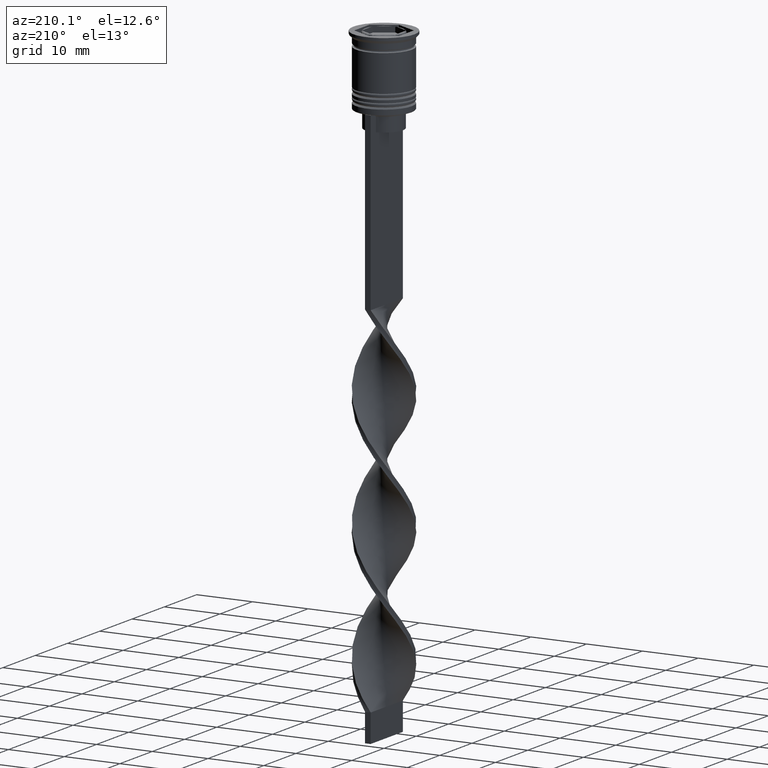
[diagram: clean part render]
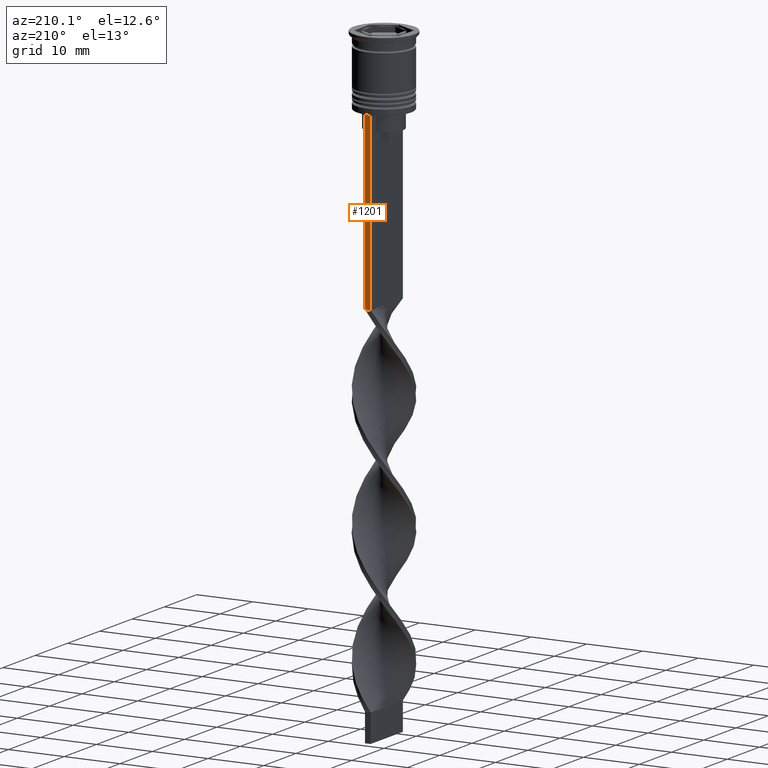
[diagram: same view with one face highlighted and labeled with its STEP entity id]
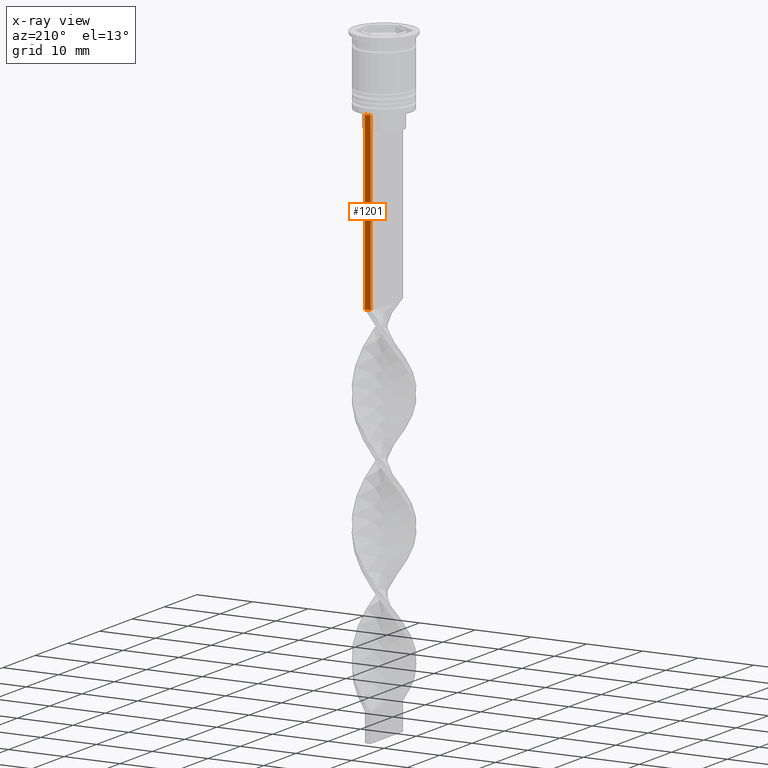
[diagram: x-ray of the same camera — body ghosted, the highlighted face saturated]
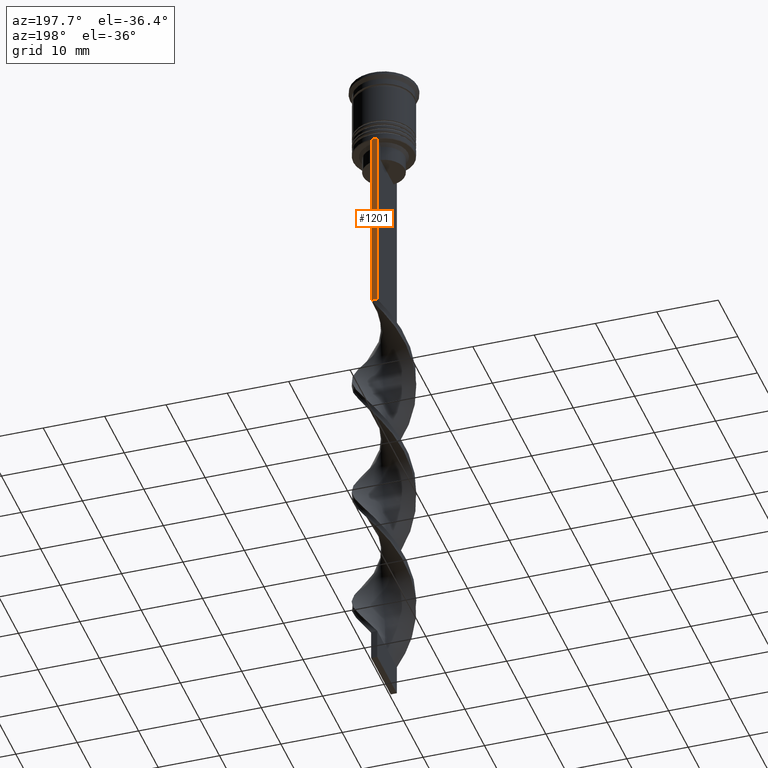
[diagram: same view with one face highlighted and labeled with its STEP entity id]
A machine part, auxiliary view. The second image highlights one B-rep face of the part: STEP entity #1201.
The next image is the same camera in x-ray: the body ghosted, the highlighted face saturated — about 0% of this face is hidden behind the body in this view.
A second angle (auxiliary view) of the same face is appended — the face is thin or edge-on in the first view.
In plain terms, the highlighted planar face has unit normal (0, -1, -0).
Its self-contained STEP definition (entity closure, byte-faithful):
#50 = DIRECTION ( 'NONE',  ( 0.000000000000000000, 0.000000000000000000, -1.000000000000000000 ) ) ;
#142 = CARTESIAN_POINT ( 'NONE',  ( 0.5000000000000000000, 5.000000000000000888, -2.450124378879110054 ) ) ;
#193 = EDGE_CURVE ( 'NONE', #2215, #1348, #1502, .T. ) ;
#252 = ORIENTED_EDGE ( 'NONE', *, *, #193, .T. ) ;
#381 = VERTEX_POINT ( 'NONE', #2992 ) ;
#382 = EDGE_CURVE ( 'NONE', #3464, #1348, #1564, .T. ) ;
#474 = VECTOR ( 'NONE', #1388, 1000.000000000000000 ) ;
#529 = CARTESIAN_POINT ( 'NONE',  ( 0.5000000000000000000, 5.000000000000000888, -12.50000000000000000 ) ) ;
#765 = CARTESIAN_POINT ( 'NONE',  ( -0.5000000000000000000, 5.000000000000000888, -2.450124378879110054 ) ) ;
#772 = VECTOR ( 'NONE', #2098, 1000.000000000000000 ) ;
#792 = ORIENTED_EDGE ( 'NONE', *, *, #2582, .T. ) ;
#939 = DIRECTION ( 'NONE',  ( 0.000000000000000000, -1.000000000000000000, -0.000000000000000000 ) ) ;
#1167 = CARTESIAN_POINT ( 'NONE',  ( 0.5000000000000000000, 5.000000000000000888, -2.450124378879110054 ) ) ;
#1201 = ADVANCED_FACE ( 'NONE', ( #2895 ), #3506, .F. ) ;
#1232 = CARTESIAN_POINT ( 'NONE',  ( 0.5000000000000000000, 5.000000000000000888, -43.50000000000000000 ) ) ;
#1334 = ORIENTED_EDGE ( 'NONE', *, *, #3505, .T. ) ;
#1348 = VERTEX_POINT ( 'NONE', #2280 ) ;
#1388 = DIRECTION ( 'NONE',  ( 1.000000000000000000, 0.000000000000000000, 0.000000000000000000 ) ) ;
#1397 = CARTESIAN_POINT ( 'NONE',  ( 0.5000000000000000000, 5.000000000000000888, -43.50000000000000000 ) ) ;
#1502 = LINE ( 'NONE', #1232, #772 ) ;
#1564 = LINE ( 'NONE', #765, #2265 ) ;
#1586 = CARTESIAN_POINT ( 'NONE',  ( -0.5000000000000000000, 5.000000000000000888, -12.50000000000000000 ) ) ;
#1896 = EDGE_LOOP ( 'NONE', ( #1983, #792, #1334, #252 ) ) ;
#1904 = DIRECTION ( 'NONE',  ( 0.000000000000000000, 0.000000000000000000, -1.000000000000000000 ) ) ;
#1983 = ORIENTED_EDGE ( 'NONE', *, *, #382, .F. ) ;
#2098 = DIRECTION ( 'NONE',  ( -1.000000000000000000, 0.000000000000000000, 0.000000000000000000 ) ) ;
#2215 = VERTEX_POINT ( 'NONE', #1397 ) ;
#2265 = VECTOR ( 'NONE', #1904, 1000.000000000000000 ) ;
#2280 = CARTESIAN_POINT ( 'NONE',  ( -0.5000000000000000000, 5.000000000000000888, -43.50000000000000000 ) ) ;
#2428 = DIRECTION ( 'NONE',  ( 0.000000000000000000, 0.000000000000000000, -1.000000000000000000 ) ) ;
#2481 = LINE ( 'NONE', #529, #474 ) ;
#2582 = EDGE_CURVE ( 'NONE', #3464, #381, #2481, .T. ) ;
#2704 = LINE ( 'NONE', #142, #3231 ) ;
#2895 = FACE_OUTER_BOUND ( 'NONE', #1896, .T. ) ;
#2992 = CARTESIAN_POINT ( 'NONE',  ( 0.5000000000000000000, 5.000000000000000888, -12.50000000000000000 ) ) ;
#3216 = AXIS2_PLACEMENT_3D ( 'NONE', #1167, #939, #50 ) ;
#3231 = VECTOR ( 'NONE', #2428, 1000.000000000000000 ) ;
#3464 = VERTEX_POINT ( 'NONE', #1586 ) ;
#3505 = EDGE_CURVE ( 'NONE', #381, #2215, #2704, .T. ) ;
#3506 = PLANE ( 'NONE',  #3216 ) ;